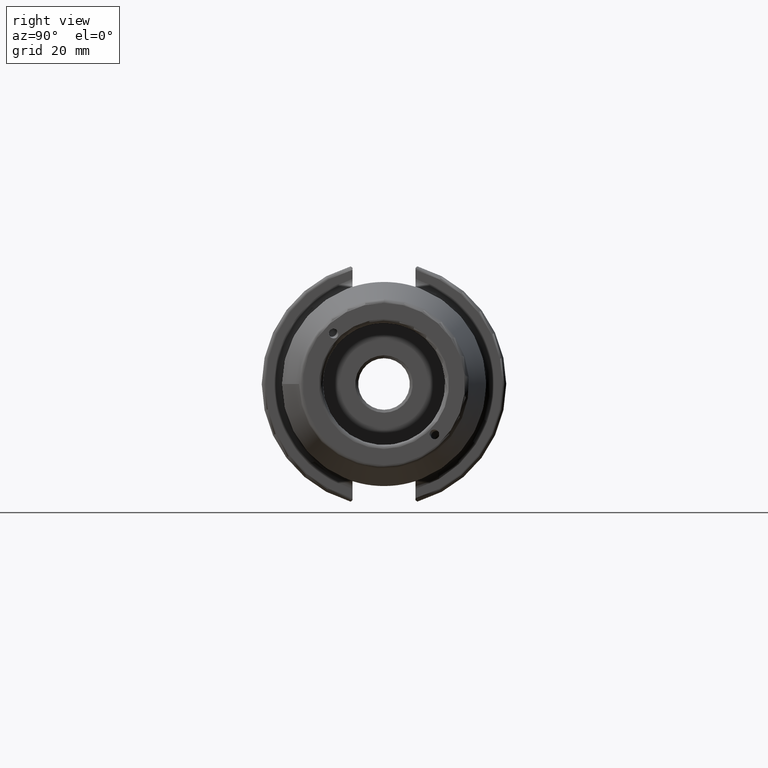
[diagram: clean part render]
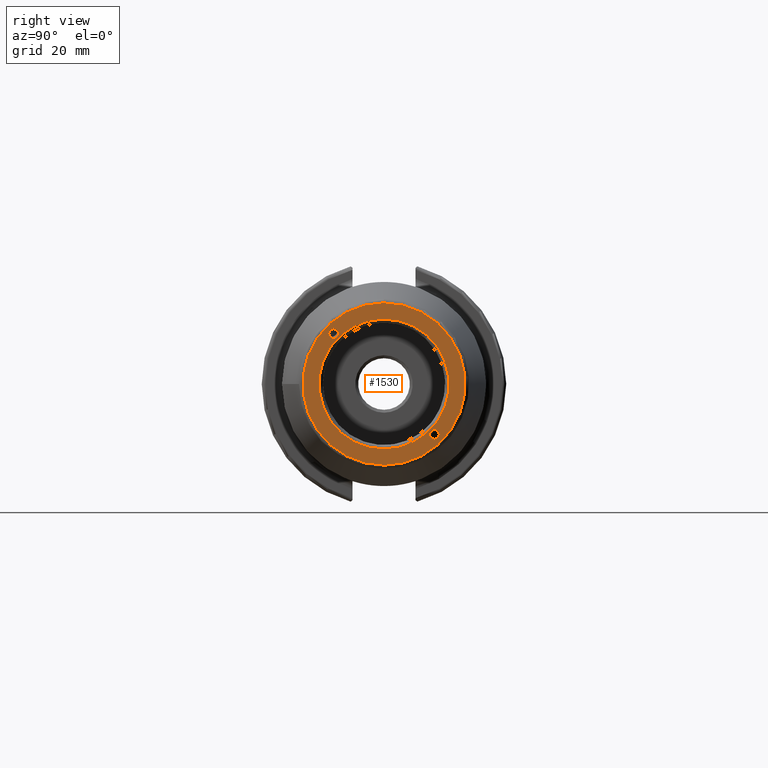
[diagram: same view with one face highlighted and labeled with its STEP entity id]
A machine part, right view. The second image highlights one B-rep face of the part: STEP entity #1530.
In plain terms, the highlighted planar face has unit normal (1, 0, 0).
Its self-contained STEP definition (entity closure, byte-faithful):
#289=FACE_BOUND('',#452,.T.);
#290=FACE_BOUND('',#453,.T.);
#291=FACE_BOUND('',#454,.T.);
#306=ELLIPSE('',#1649,1.25076193037353,1.25);
#307=ELLIPSE('',#1650,1.25076193037353,1.25);
#326=PLANE('',#1647);
#361=FACE_OUTER_BOUND('',#451,.T.);
#451=EDGE_LOOP('',(#1042));
#452=EDGE_LOOP('',(#1043));
#453=EDGE_LOOP('',(#1044));
#454=EDGE_LOOP('',(#1045));
#560=CIRCLE('',#1646,16.875);
#561=CIRCLE('',#1648,21.0756095083418);
#638=VERTEX_POINT('',#2303);
#639=VERTEX_POINT('',#2307);
#640=VERTEX_POINT('',#2309);
#641=VERTEX_POINT('',#2311);
#799=EDGE_CURVE('',#638,#638,#560,.T.);
#800=EDGE_CURVE('',#639,#639,#561,.T.);
#801=EDGE_CURVE('',#640,#640,#306,.T.);
#802=EDGE_CURVE('',#641,#641,#307,.T.);
#1042=ORIENTED_EDGE('',*,*,#800,.F.);
#1043=ORIENTED_EDGE('',*,*,#801,.T.);
#1044=ORIENTED_EDGE('',*,*,#802,.T.);
#1045=ORIENTED_EDGE('',*,*,#799,.F.);
#1530=ADVANCED_FACE('',(#361,#289,#290,#291),#326,.T.);
#1646=AXIS2_PLACEMENT_3D('',#2305,#1841,#1842);
#1647=AXIS2_PLACEMENT_3D('',#2306,#1843,#1844);
#1648=AXIS2_PLACEMENT_3D('',#2308,#1845,#1846);
#1649=AXIS2_PLACEMENT_3D('',#2310,#1847,#1848);
#1650=AXIS2_PLACEMENT_3D('',#2312,#1849,#1850);
#1841=DIRECTION('center_axis',(1.,0.,0.));
#1842=DIRECTION('ref_axis',(0.,-1.,1.83697019872103E-16));
#1843=DIRECTION('center_axis',(1.,0.,0.));
#1844=DIRECTION('ref_axis',(0.,0.,-1.));
#1845=DIRECTION('center_axis',(-1.,0.,0.));
#1846=DIRECTION('ref_axis',(0.,-1.,1.83697019872103E-16));
#1847=DIRECTION('center_axis',(-1.,0.,0.));
#1848=DIRECTION('ref_axis',(0.,0.707106781186413,-0.707106781186682));
#1849=DIRECTION('center_axis',(-1.,0.,0.));
#1850=DIRECTION('ref_axis',(0.,-0.707106781186413,0.707106781186682));
#2303=CARTESIAN_POINT('',(100.,-2.06659147356116E-15,16.875));
#2305=CARTESIAN_POINT('Origin',(100.,0.,0.));
#2306=CARTESIAN_POINT('Origin',(100.,15.875,0.));
#2307=CARTESIAN_POINT('',(100.,-2.58101777244703E-15,21.0756095083418));
#2308=CARTESIAN_POINT('Origin',(100.,0.,0.));
#2309=CARTESIAN_POINT('',(100.,-14.331856475174,13.0822373822893));
#2310=CARTESIAN_POINT('Origin',(100.,-13.0814754519511,13.0814754519511));
#2311=CARTESIAN_POINT('',(100.,14.331856475174,-13.0822373822893));
#2312=CARTESIAN_POINT('Origin',(100.,13.0814754519511,-13.0814754519511));